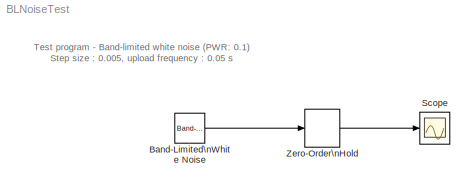
MODEL BLNoiseTest
KIND model
BLOCK [Reference] Band-Limited\nWhite Noise  REF=simulink/Sources/Band-Limited\nWhite Noise
  Cov = [0.1]
  FunctionWithSeparateData = off
  Ports = [0, 1]
  RTWMemSecDataConstants = Inherit from model
  RTWMemSecDataInternal = Inherit from model
  RTWMemSecDataParameters = Inherit from model
  RTWMemSecFuncExecute = Inherit from model
  RTWMemSecFuncInitTerm = Inherit from model
  SID = 1
  ShowPortLabels = FromPortIcon
  SourceBlock = simulink/Sources/Band-Limited\nWhite Noise
  SourceProductBaseCode = SL
  SourceProductName = Simulink
  SourceType = Band-Limited White Noise.
  SystemSampleTime = -1
  Ts = 0.01
  VectorParams1D = on
  seed = [23341]
BLOCK [Scope] Scope
  Floating = off
  NumInputPorts = 1
  Ports = [1]
  SID = 2
  ScopeSpecificationString = C++SS(StrPVP('Location','[110, 144, 434, 383]'),StrPVP('Open','off'),MxPVP('AxesTitles',54,'struct(''axes1'',''%<SignalLabel>'')'),StrPVP('TimeRange','5'),StrPVP('YMin','-10'),StrPVP('YMax','10'),StrPVP('DataFormat','StructureWithTime'),StrPVP('LimitDataPoints','on'),StrPVP('Decimation','1'),StrPVP('BlockParamSampleInput','off'))
BLOCK [ZeroOrderHold] Zero-Order\nHold
  SID = 3
  SampleTime = 0.05
ANNOTATION (root): Test program - Band-limited white noise (PWR: 0.1)\n Step size : 0.005, upload frequency : 0.05 s
LINE Band-Limited\nWhite Noise:1 -> Zero-Order\nHold:1
LINE Zero-Order\nHold:1 -> Scope:1
